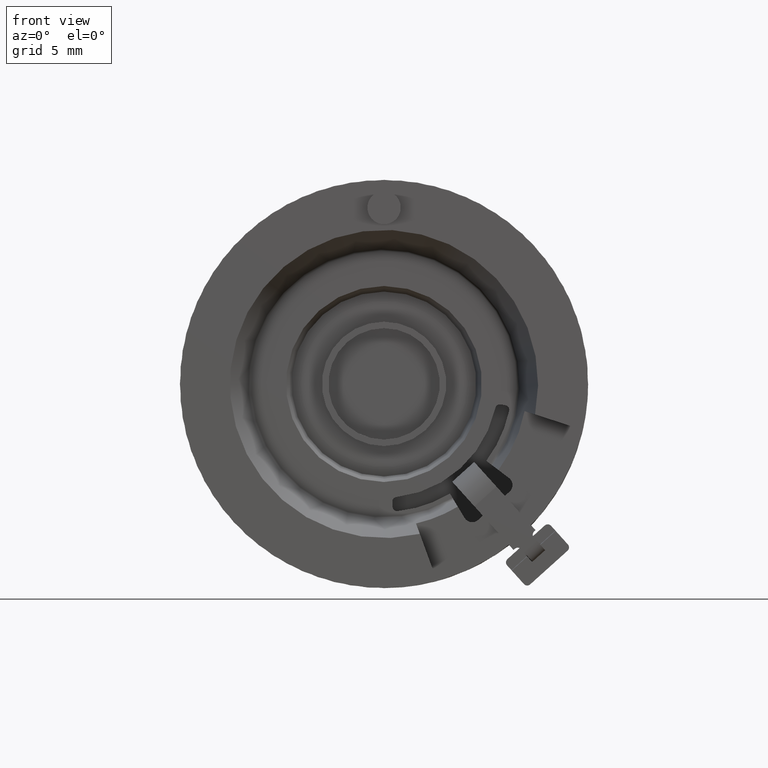
[diagram: clean part render]
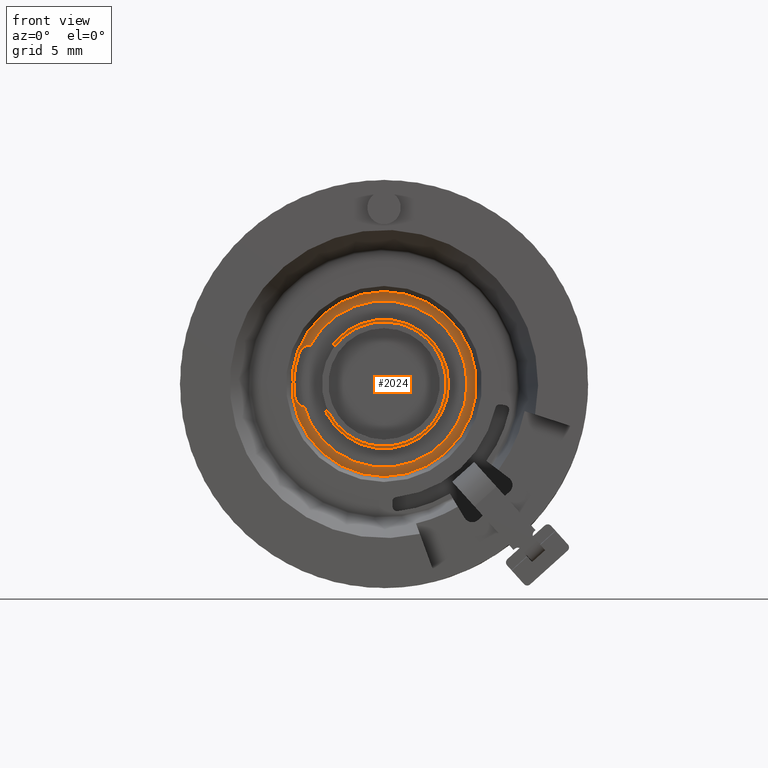
[diagram: same view with one face highlighted and labeled with its STEP entity id]
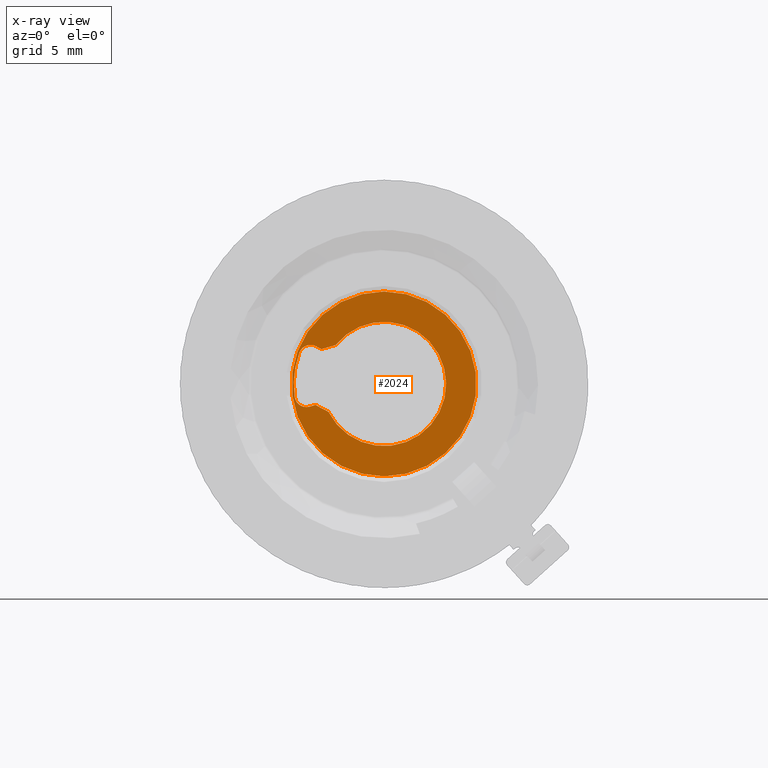
[diagram: x-ray of the same camera — body ghosted, the highlighted face saturated]
A machine part, front view. The second image highlights one B-rep face of the part: STEP entity #2024.
The next image is the same camera in x-ray: the body ghosted, the highlighted face saturated — about 0% of this face is hidden behind the body in this view.
In plain terms, the highlighted planar face has unit normal (0, -1, 0).
Its self-contained STEP definition (entity closure, byte-faithful):
#636=DIRECTION('',(-8.746197071394E-1,0.E0,4.848096202463E-1));
#637=VECTOR('',#636,3.105373427139E-1);
#638=CARTESIAN_POINT('',(-3.381194821995E0,4.917086458E0,1.874226894557E0));
#639=LINE('',#638,#637);
#664=CARTESIAN_POINT('',(0.E0,4.917086458E0,0.E0));
#665=DIRECTION('',(0.E0,1.E0,0.E0));
#666=DIRECTION('',(-7.805772562863E-1,0.E0,6.250593147602E-1));
#667=AXIS2_PLACEMENT_3D('',#664,#665,#666);
#669=CARTESIAN_POINT('',(-3.961966163345E0,4.917086458E0,1.467022273345E0));
#670=DIRECTION('',(0.E0,1.E0,0.E0));
#671=DIRECTION('',(-9.377774814173E-1,0.E0,3.472368001041E-1));
#672=AXIS2_PLACEMENT_3D('',#669,#670,#671);
#674=CARTESIAN_POINT('',(0.E0,4.917086458E0,0.E0));
#675=DIRECTION('',(0.E0,1.E0,0.E0));
#676=DIRECTION('',(-9.894793836944E-1,0.E0,-1.446739411360E-1));
#677=AXIS2_PLACEMENT_3D('',#674,#675,#676);
#679=CARTESIAN_POINT('',(-4.180398778183E0,4.917086458E0,-6.112252329118E-1));
#680=DIRECTION('',(0.E0,1.E0,0.E0));
#681=DIRECTION('',(2.923717047227E-1,0.E0,-9.563047559630E-1));
#682=AXIS2_PLACEMENT_3D('',#679,#680,#681);
#688=CARTESIAN_POINT('',(0.E0,4.917086458E0,0.E0));
#689=DIRECTION('',(0.E0,1.E0,0.E0));
#690=DIRECTION('',(0.E0,0.E0,1.E0));
#691=AXIS2_PLACEMENT_3D('',#688,#689,#690);
#697=CARTESIAN_POINT('',(0.E0,4.917086458E0,0.E0));
#698=DIRECTION('',(0.E0,-1.E0,0.E0));
#699=DIRECTION('',(0.E0,0.E0,1.E0));
#700=AXIS2_PLACEMENT_3D('',#697,#698,#699);
#707=DIRECTION('',(-8.829475928589E-1,0.E0,4.694715627859E-1));
#708=VECTOR('',#707,7.971409E-1);
#709=CARTESIAN_POINT('',(-2.993147646547E0,4.917086458E0,-1.504515591800E0));
#710=LINE('',#709,#708);
#715=DIRECTION('',(-9.563047559630E-1,0.E0,-2.923717047227E-1));
#716=VECTOR('',#715,3.105373427139E-1);
#717=CARTESIAN_POINT('',(-3.696981285371E0,4.917086458E0,-1.130280607717E0));
#718=LINE('',#717,#716);
#775=DIRECTION('',(9.612616959383E-1,0.E0,2.756373558170E-1));
#776=VECTOR('',#775,7.971409E-1);
#777=CARTESIAN_POINT('',(-3.381194821995E0,4.917086458E0,1.874226894557E0));
#778=LINE('',#777,#776);
#1219=CARTESIAN_POINT('',(0.E0,4.917086458E0,4.982130625E0));
#1220=CARTESIAN_POINT('',(0.E0,4.917086458E0,-4.982130625E0));
#1221=VERTEX_POINT('',#1219);
#1222=VERTEX_POINT('',#1220);
#1223=CARTESIAN_POINT('',(-2.614933808559E0,4.917086458E0,2.093948704447E0));
#1224=CARTESIAN_POINT('',(-2.993147646547E0,4.917086458E0,-1.504515591800E0));
#1225=VERTEX_POINT('',#1223);
#1226=VERTEX_POINT('',#1224);
#1231=CARTESIAN_POINT('',(-3.381194821995E0,4.917086458E0,1.874226894557E0));
#1232=CARTESIAN_POINT('',(-3.652796901735E0,4.917086458E0,2.024778385751E0));
#1233=VERTEX_POINT('',#1231);
#1234=VERTEX_POINT('',#1232);
#1235=CARTESIAN_POINT('',(-3.696981285371E0,4.917086458E0,-1.130280607717E0));
#1236=CARTESIAN_POINT('',(-3.993949623113E0,4.917086458E0,-1.221072939986E0));
#1237=VERTEX_POINT('',#1235);
#1238=VERTEX_POINT('',#1236);
#1239=CARTESIAN_POINT('',(-4.811402367342E0,4.917086458E0,-7.034856454267E-1));
#1240=VERTEX_POINT('',#1239);
#1241=CARTESIAN_POINT('',(-4.559998791774E0,4.917086458E0,1.688459597624E0));
#1242=VERTEX_POINT('',#1241);
#1996=CARTESIAN_POINT('',(0.E0,4.917086458E0,0.E0));
#1997=DIRECTION('',(0.E0,-1.E0,0.E0));
#1998=DIRECTION('',(0.E0,0.E0,1.E0));
#1999=AXIS2_PLACEMENT_3D('',#1996,#1997,#1998);
#2000=PLANE('',#1999);
#2002=ORIENTED_EDGE('',*,*,#2001,.T.);
#2004=ORIENTED_EDGE('',*,*,#2003,.F.);
#2005=EDGE_LOOP('',(#2002,#2004));
#2006=FACE_OUTER_BOUND('',#2005,.F.);
#2008=ORIENTED_EDGE('',*,*,#2007,.F.);
#2010=ORIENTED_EDGE('',*,*,#2009,.F.);
#2011=ORIENTED_EDGE('',*,*,#1979,.T.);
#2013=ORIENTED_EDGE('',*,*,#2012,.F.);
#2015=ORIENTED_EDGE('',*,*,#2014,.F.);
#2017=ORIENTED_EDGE('',*,*,#2016,.F.);
#2019=ORIENTED_EDGE('',*,*,#2018,.F.);
#2021=ORIENTED_EDGE('',*,*,#2020,.F.);
#2022=EDGE_LOOP('',(#2008,#2010,#2011,#2013,#2015,#2017,#2019,#2021));
#2023=FACE_BOUND('',#2022,.F.);
#2024=ADVANCED_FACE('',(#2006,#2023),#2000,.T.);
#668=CIRCLE('',#667,3.35E0);
#673=CIRCLE('',#672,6.3771272E-1);
#678=CIRCLE('',#677,4.86255949E0);
#683=CIRCLE('',#682,6.3771272E-1);
#692=CIRCLE('',#691,4.982130625E0);
#701=CIRCLE('',#700,4.982130625E0);
#1979=EDGE_CURVE('',#1233,#1234,#639,.T.);
#2001=EDGE_CURVE('',#1221,#1222,#692,.T.);
#2003=EDGE_CURVE('',#1221,#1222,#701,.T.);
#2007=EDGE_CURVE('',#1225,#1226,#668,.T.);
#2009=EDGE_CURVE('',#1233,#1225,#778,.T.);
#2012=EDGE_CURVE('',#1242,#1234,#673,.T.);
#2014=EDGE_CURVE('',#1240,#1242,#678,.T.);
#2016=EDGE_CURVE('',#1238,#1240,#683,.T.);
#2018=EDGE_CURVE('',#1237,#1238,#718,.T.);
#2020=EDGE_CURVE('',#1226,#1237,#710,.T.);